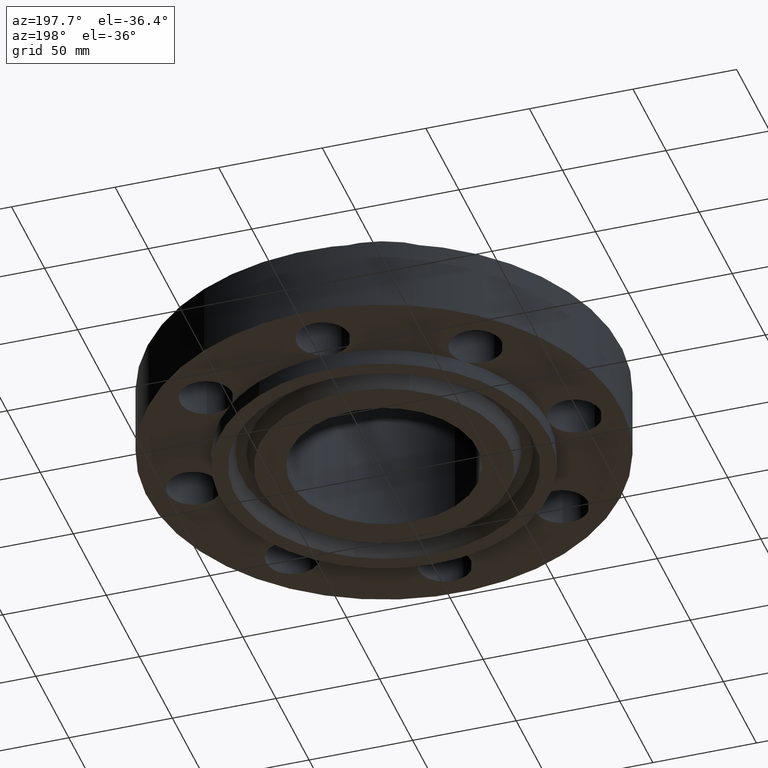
[diagram: clean part render]
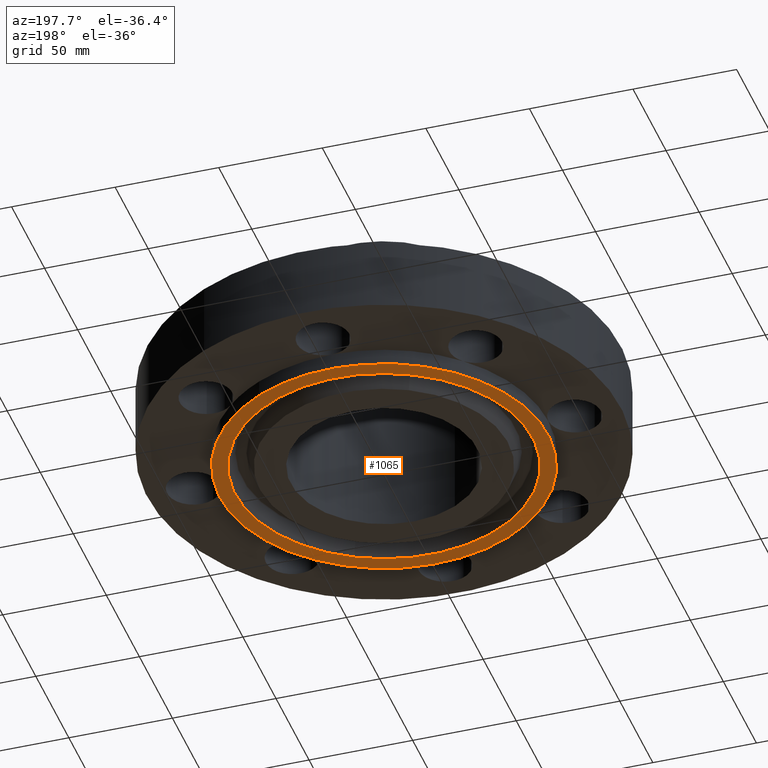
[diagram: same view with one face highlighted and labeled with its STEP entity id]
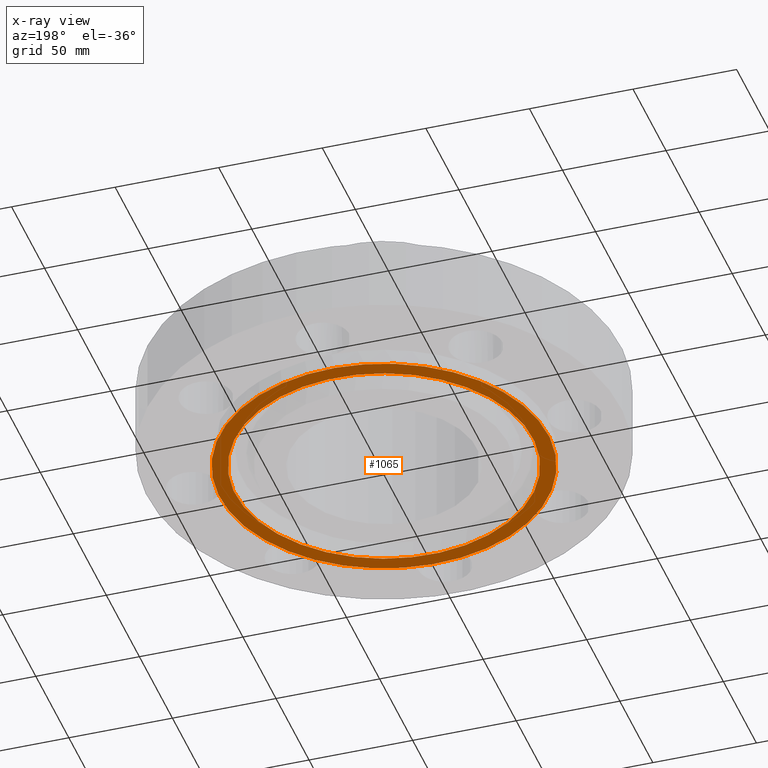
[diagram: x-ray of the same camera — body ghosted, the highlighted face saturated]
A machine part, auxiliary view. The second image highlights one B-rep face of the part: STEP entity #1065.
The next image is the same camera in x-ray: the body ghosted, the highlighted face saturated — about 0% of this face is hidden behind the body in this view.
In plain terms, the highlighted planar face has unit normal (0, 0, -1).
Its self-contained STEP definition (entity closure, byte-faithful):
#439=AXIS2_PLACEMENT_3D('Circle Axis2P3D',#437,#438,$) ;
#504=AXIS2_PLACEMENT_3D('Circle Axis2P3D',#502,#503,$) ;
#1041=AXIS2_PLACEMENT_3D('Plane Axis2P3D',#1038,#1039,#1040) ;
#1049=AXIS2_PLACEMENT_3D('Circle Axis2P3D',#1047,#1048,$) ;
#1058=AXIS2_PLACEMENT_3D('Circle Axis2P3D',#1056,#1057,$) ;
#437=CARTESIAN_POINT('Axis2P3D Location',(0.,0.,-0.313000000001)) ;
#441=CARTESIAN_POINT('Vertex',(-1.49820480814,-2.74244550592,-0.313000000001)) ;
#443=CARTESIAN_POINT('Vertex',(1.49820480814,2.74244550592,-0.313000000001)) ;
#502=CARTESIAN_POINT('Axis2P3D Location',(0.,0.,-0.313000000001)) ;
#1038=CARTESIAN_POINT('Axis2P3D Location',(0.,1.77400000001,-0.313000000001)) ;
#1047=CARTESIAN_POINT('Axis2P3D Location',(4.19611851827E-016,0.,-0.313000000001)) ;
#1051=CARTESIAN_POINT('Vertex',(1.35605513595,-2.48224227632,-0.313000000001)) ;
#1053=CARTESIAN_POINT('Vertex',(-1.35605513595,2.48224227632,-0.313000000001)) ;
#1056=CARTESIAN_POINT('Axis2P3D Location',(-5.59482469102E-016,-5.59482469102E-016,-0.313000000001)) ;
#438=DIRECTION('Axis2P3D Direction',(0.,0.,-0.0393700787402)) ;
#503=DIRECTION('Axis2P3D Direction',(0.,0.,-0.0393700787402)) ;
#1039=DIRECTION('Axis2P3D Direction',(0.,0.,-0.0393700787402)) ;
#1040=DIRECTION('Axis2P3D XDirection',(0.0393700787402,0.,0.)) ;
#1048=DIRECTION('Axis2P3D Direction',(0.,0.,-0.0393700787402)) ;
#1057=DIRECTION('Axis2P3D Direction',(0.,0.,-0.0393700787402)) ;
#1044=ORIENTED_EDGE('',*,*,#445,.T.) ;
#1045=ORIENTED_EDGE('',*,*,#506,.T.) ;
#1062=ORIENTED_EDGE('',*,*,#1055,.F.) ;
#1063=ORIENTED_EDGE('',*,*,#1060,.F.) ;
#1064=FACE_BOUND('',#1061,.T.) ;
#1065=ADVANCED_FACE('PartBody',(#1046,#1064),#1042,.T.) ;
#440=CIRCLE('generated circle',#439,3.12500000001) ;
#505=CIRCLE('generated circle',#504,3.12500000001) ;
#1050=CIRCLE('generated circle',#1049,2.82850000001) ;
#1059=CIRCLE('generated circle',#1058,2.82850000001) ;
#445=EDGE_CURVE('',#442,#444,#440,.T.) ;
#506=EDGE_CURVE('',#444,#442,#505,.T.) ;
#1055=EDGE_CURVE('',#1052,#1054,#1050,.T.) ;
#1060=EDGE_CURVE('',#1054,#1052,#1059,.T.) ;
#1043=EDGE_LOOP('',(#1044,#1045)) ;
#1061=EDGE_LOOP('',(#1062,#1063)) ;
#1046=FACE_OUTER_BOUND('',#1043,.T.) ;
#1042=PLANE('',#1041) ;
#442=VERTEX_POINT('',#441) ;
#444=VERTEX_POINT('',#443) ;
#1052=VERTEX_POINT('',#1051) ;
#1054=VERTEX_POINT('',#1053) ;